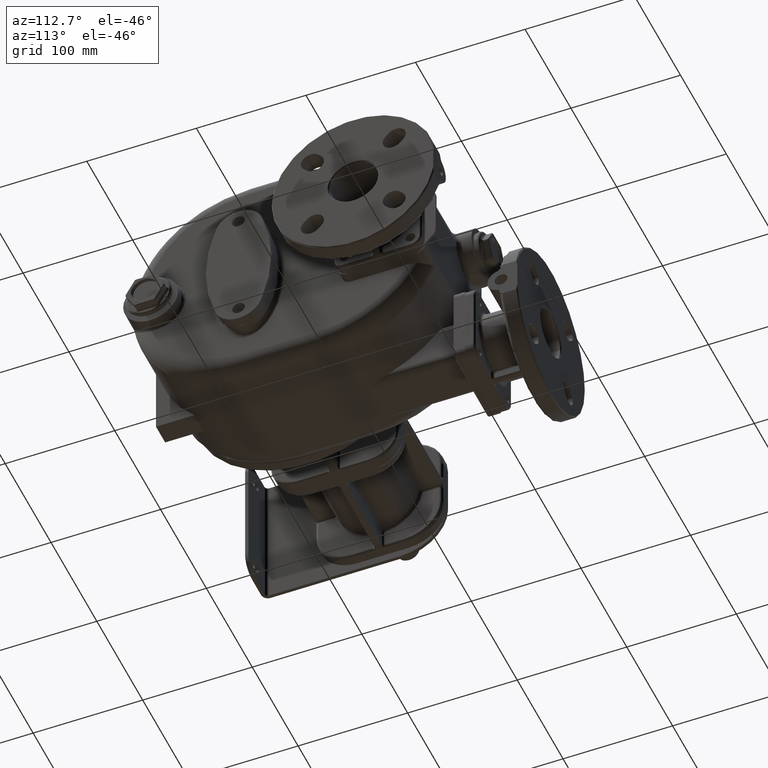
[diagram: clean part render]
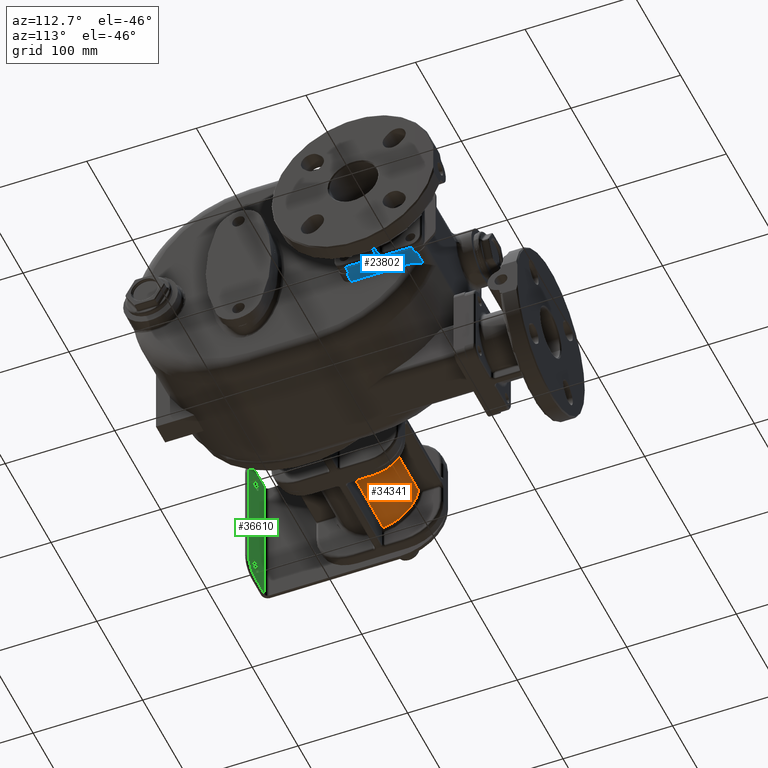
[diagram: same view with three faces highlighted in distinct colors, each labeled with its STEP entity id]
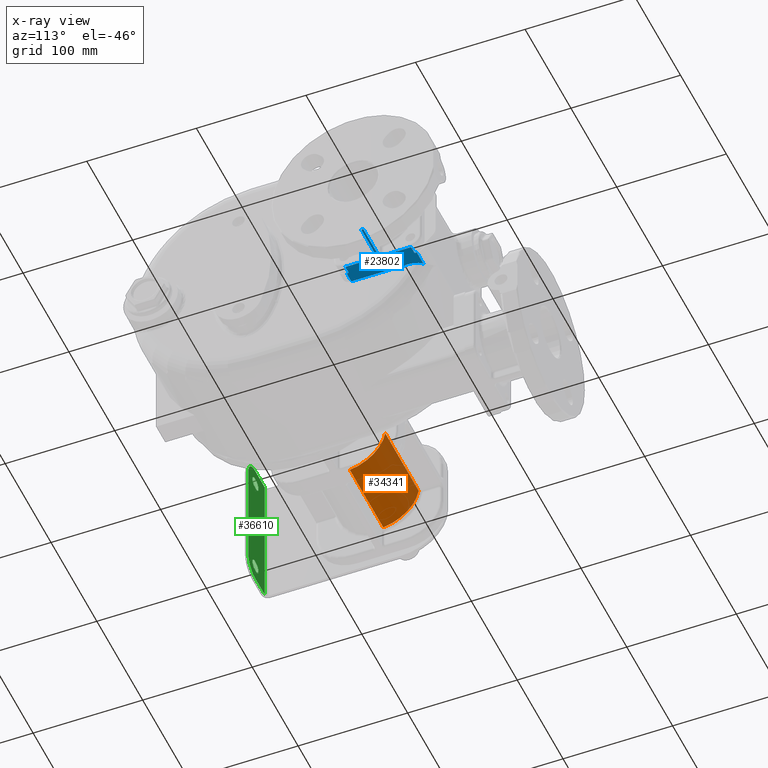
[diagram: x-ray of the same camera — body ghosted, the three highlighted faces saturated]
A machine part, auxiliary view with three faces highlighted in distinct colors.
The next image is the same camera in x-ray (body ghosted, the three faces saturated) — at least one of them is partly hidden behind the body in this view.
Their STEP definitions:

[orange] entity #34341 — the highlighted cylindrical surface (partial cylindrical patch) has radius 38 mm, axis along (-1, 0, 0).
#11312=CARTESIAN_POINT('',(-1.375E2,1.152250000008E2,-3.763906714377E1));
#11331=CARTESIAN_POINT('',(-1.375E2,1.1E2,0.E0));
#11332=DIRECTION('',(-1.E0,0.E0,0.E0));
#11333=DIRECTION('',(0.E0,9.873531035554E-1,-1.585365853659E-1));
#11334=AXIS2_PLACEMENT_3D('',#11331,#11332,#11333);
#11351=DIRECTION('',(1.E0,-7.658288006795E-13,5.517802348973E-12));
#11352=VECTOR('',#11351,7.3E1);
#11353=CARTESIAN_POINT('',(-2.105E2,1.152250000009E2,-3.763906714417E1));
#11354=LINE('',#11353,#11352);
#11355=DIRECTION('',(-1.E0,0.E0,0.E0));
#11356=VECTOR('',#11355,7.3E1);
#11357=CARTESIAN_POINT('',(-1.375E2,1.475194179351E2,-6.024390243902E0));
#11358=LINE('',#11357,#11356);
#11378=CARTESIAN_POINT('',(-2.105E2,1.1E2,0.E0));
#11379=DIRECTION('',(1.E0,0.E0,0.E0));
#11380=DIRECTION('',(0.E0,1.375E-1,-9.905017667829E-1));
#11381=AXIS2_PLACEMENT_3D('',#11378,#11379,#11380);
#15077=CARTESIAN_POINT('',(-2.105E2,1.475194179351E2,-6.024390243902E0));
#15078=VERTEX_POINT('',#15077);
#15079=CARTESIAN_POINT('',(-1.375E2,1.475194179351E2,-6.024390243902E0));
#15080=VERTEX_POINT('',#15079);
#15191=VERTEX_POINT('',#11312);
#15192=CARTESIAN_POINT('',(-2.105E2,1.152250000009E2,-3.763906714417E1));
#15193=VERTEX_POINT('',#15192);
#34328=CARTESIAN_POINT('',(-1.1625E2,1.1E2,0.E0));
#34329=DIRECTION('',(-1.E0,0.E0,0.E0));
#34330=DIRECTION('',(0.E0,-1.E0,0.E0));
#34331=AXIS2_PLACEMENT_3D('',#34328,#34329,#34330);
#34332=CYLINDRICAL_SURFACE('',#34331,3.8E1);
#34334=ORIENTED_EDGE('',*,*,#34333,.T.);
#34335=ORIENTED_EDGE('',*,*,#34284,.F.);
#34336=ORIENTED_EDGE('',*,*,#34319,.T.);
#34338=ORIENTED_EDGE('',*,*,#34337,.F.);
#34339=EDGE_LOOP('',(#34334,#34335,#34336,#34338));
#34340=FACE_OUTER_BOUND('',#34339,.F.);
#34341=ADVANCED_FACE('',(#34340),#34332,.T.);
#11335=CIRCLE('',#11334,3.8E1);
#11382=CIRCLE('',#11381,3.8E1);
#34284=EDGE_CURVE('',#15080,#15191,#11335,.T.);
#34319=EDGE_CURVE('',#15080,#15078,#11358,.T.);
#34333=EDGE_CURVE('',#15193,#15191,#11354,.T.);
#34337=EDGE_CURVE('',#15193,#15078,#11382,.T.);

[blue] entity #23802 — the highlighted planar face has unit normal (0, 0, -1).
#2192=DIRECTION('',(1.E0,0.E0,0.E0));
#2193=VECTOR('',#2192,1.408347562149E1);
#2194=CARTESIAN_POINT('',(6.991652437851E1,2.69E2,-4.7E1));
#2195=LINE('',#2194,#2193);
#2293=CARTESIAN_POINT('',(7.4E1,2.573768228992E2,-4.7E1));
#2294=CARTESIAN_POINT('',(7.4E1,2.576020841172E2,-4.7E1));
#2295=CARTESIAN_POINT('',(7.399229348160E1,2.580511507349E2,-4.7E1));
#2296=CARTESIAN_POINT('',(7.395779192768E1,2.587211423584E2,-4.7E1));
#2297=CARTESIAN_POINT('',(7.390066815002E1,2.593852482694E2,-4.7E1));
#2298=CARTESIAN_POINT('',(7.382117493754E1,2.600433627516E2,-4.7E1));
#2299=CARTESIAN_POINT('',(7.371969160582E1,2.606940159417E2,-4.7E1));
#2300=CARTESIAN_POINT('',(7.359673452289E1,2.613358163383E2,-4.7E1));
#2301=CARTESIAN_POINT('',(7.345259981904E1,2.619686264832E2,-4.7E1));
#2302=CARTESIAN_POINT('',(7.328795824950E1,2.625907623841E2,-4.7E1));
#2303=CARTESIAN_POINT('',(7.310323769657E1,2.632018763834E2,-4.7E1));
#2304=CARTESIAN_POINT('',(7.289894857617E1,2.638012376095E2,-4.7E1));
#2305=CARTESIAN_POINT('',(7.267588768255E1,2.643875618754E2,-4.7E1));
#2306=CARTESIAN_POINT('',(7.243435346503E1,2.649609632373E2,-4.7E1));
#2307=CARTESIAN_POINT('',(7.217522917677E1,2.655201532063E2,-4.7E1));
#2308=CARTESIAN_POINT('',(7.189898353999E1,2.660649519596E2,-4.7E1));
#2309=CARTESIAN_POINT('',(7.160621854533E1,2.665948407258E2,-4.7E1));
#2310=CARTESIAN_POINT('',(7.129783018173E1,2.671089253753E2,-4.7E1));
#2311=CARTESIAN_POINT('',(7.097407269753E1,2.676074032988E2,-4.7E1));
#2312=CARTESIAN_POINT('',(7.063600853973E1,2.680892357156E2,-4.7E1));
#2313=CARTESIAN_POINT('',(7.028384310627E1,2.685546866574E2,-4.7E1));
#2314=CARTESIAN_POINT('',(7.004041331155E1,2.688534246486E2,-4.7E1));
#2315=CARTESIAN_POINT('',(6.991652437851E1,2.69E2,-4.7E1));
#5646=DIRECTION('',(1.E0,-2.590544075550E-11,0.E0));
#5647=VECTOR('',#5646,7.5E0);
#5648=CARTESIAN_POINT('',(8.4E1,2.67E2,-4.7E1));
#5649=LINE('',#5648,#5647);
#5659=DIRECTION('',(2.668087972821E-12,1.E0,0.E0));
#5660=VECTOR('',#5659,2.399999999962E1);
#5661=CARTESIAN_POINT('',(9.15E1,2.070000000001E2,-4.7E1));
#5662=LINE('',#5661,#5660);
#5663=CARTESIAN_POINT('',(9.65E1,2.31E2,-4.7E1));
#5664=DIRECTION('',(0.E0,0.E0,-1.E0));
#5665=DIRECTION('',(-1.E0,0.E0,0.E0));
#5666=AXIS2_PLACEMENT_3D('',#5663,#5664,#5665);
#5668=DIRECTION('',(1.E0,4.361785007276E-12,0.E0));
#5669=VECTOR('',#5668,2.999999999984E1);
#5670=CARTESIAN_POINT('',(9.650000000016E1,2.36E2,-4.7E1));
#5671=LINE('',#5670,#5669);
#5672=DIRECTION('',(0.E0,-1.E0,0.E0));
#5673=VECTOR('',#5672,1.999999999734E0);
#5674=CARTESIAN_POINT('',(1.265E2,2.379999999998E2,-4.7E1));
#5675=LINE('',#5674,#5673);
#5676=DIRECTION('',(-1.E0,7.216272024458E-12,0.E0));
#5677=VECTOR('',#5676,2.999999999968E1);
#5678=CARTESIAN_POINT('',(1.265E2,2.379999999998E2,-4.7E1));
#5679=LINE('',#5678,#5677);
#5680=CARTESIAN_POINT('',(9.65E1,2.43E2,-4.7E1));
#5681=DIRECTION('',(0.E0,0.E0,-1.E0));
#5682=DIRECTION('',(0.E0,-1.E0,0.E0));
#5683=AXIS2_PLACEMENT_3D('',#5680,#5681,#5682);
#5685=DIRECTION('',(-1.337004581142E-12,1.E0,0.E0));
#5686=VECTOR('',#5685,2.399999999964E1);
#5687=CARTESIAN_POINT('',(9.150000000003E1,2.430000000002E2,-4.7E1));
#5688=LINE('',#5687,#5686);
#5689=DIRECTION('',(0.E0,1.E0,0.E0));
#5690=VECTOR('',#5689,5.237682289921E1);
#5691=CARTESIAN_POINT('',(7.4E1,2.05E2,-4.7E1));
#5692=LINE('',#5691,#5690);
#5693=DIRECTION('',(-1.E0,0.E0,0.E0));
#5694=VECTOR('',#5693,1.E1);
#5695=CARTESIAN_POINT('',(8.4E1,2.05E2,-4.7E1));
#5696=LINE('',#5695,#5694);
#5706=DIRECTION('',(-1.E0,-7.071321306285E-12,0.E0));
#5707=VECTOR('',#5706,7.5E0);
#5708=CARTESIAN_POINT('',(9.15E1,2.070000000001E2,-4.7E1));
#5709=LINE('',#5708,#5707);
#7052=DIRECTION('',(0.E0,1.E0,0.E0));
#7053=VECTOR('',#7052,2.E0);
#7054=CARTESIAN_POINT('',(8.4E1,2.05E2,-4.7E1));
#7055=LINE('',#7054,#7053);
#7079=DIRECTION('',(0.E0,1.E0,0.E0));
#7080=VECTOR('',#7079,2.E0);
#7081=CARTESIAN_POINT('',(8.4E1,2.67E2,-4.7E1));
#7082=LINE('',#7081,#7080);
#13472=CARTESIAN_POINT('',(8.4E1,2.05E2,-4.7E1));
#13474=VERTEX_POINT('',#13472);
#13483=CARTESIAN_POINT('',(7.4E1,2.05E2,-4.7E1));
#13484=VERTEX_POINT('',#13483);
#13492=CARTESIAN_POINT('',(7.4E1,2.573768228992E2,-4.7E1));
#13494=VERTEX_POINT('',#13492);
#13512=VERTEX_POINT('',#2315);
#13515=CARTESIAN_POINT('',(8.4E1,2.69E2,-4.7E1));
#13516=VERTEX_POINT('',#13515);
#14648=CARTESIAN_POINT('',(8.4E1,2.07E2,-4.7E1));
#14650=VERTEX_POINT('',#14648);
#14665=CARTESIAN_POINT('',(8.4E1,2.67E2,-4.7E1));
#14666=VERTEX_POINT('',#14665);
#14813=CARTESIAN_POINT('',(9.15E1,2.070000000001E2,-4.7E1));
#14814=CARTESIAN_POINT('',(9.150000000006E1,2.309999999997E2,-4.7E1));
#14815=VERTEX_POINT('',#14813);
#14816=VERTEX_POINT('',#14814);
#14851=CARTESIAN_POINT('',(9.15E1,2.67E2,-4.7E1));
#14852=VERTEX_POINT('',#14851);
#14855=CARTESIAN_POINT('',(9.150000000003E1,2.430000000002E2,-4.7E1));
#14856=VERTEX_POINT('',#14855);
#14857=CARTESIAN_POINT('',(9.650000000016E1,2.36E2,-4.7E1));
#14858=CARTESIAN_POINT('',(1.265E2,2.360000000001E2,-4.7E1));
#14859=VERTEX_POINT('',#14857);
#14860=VERTEX_POINT('',#14858);
#14877=CARTESIAN_POINT('',(1.265E2,2.379999999998E2,-4.7E1));
#14878=CARTESIAN_POINT('',(9.650000000032E1,2.380000000001E2,-4.7E1));
#14879=VERTEX_POINT('',#14877);
#14880=VERTEX_POINT('',#14878);
#23769=CARTESIAN_POINT('',(8.4E1,1.97E2,-4.7E1));
#23770=DIRECTION('',(0.E0,0.E0,-1.E0));
#23771=DIRECTION('',(0.E0,1.E0,0.E0));
#23772=AXIS2_PLACEMENT_3D('',#23769,#23770,#23771);
#23773=PLANE('',#23772);
#23775=ORIENTED_EDGE('',*,*,#23774,.F.);
#23777=ORIENTED_EDGE('',*,*,#23776,.T.);
#23779=ORIENTED_EDGE('',*,*,#23778,.T.);
#23781=ORIENTED_EDGE('',*,*,#23780,.T.);
#23783=ORIENTED_EDGE('',*,*,#23782,.F.);
#23785=ORIENTED_EDGE('',*,*,#23784,.T.);
#23787=ORIENTED_EDGE('',*,*,#23786,.T.);
#23789=ORIENTED_EDGE('',*,*,#23788,.T.);
#23790=ORIENTED_EDGE('',*,*,#23756,.F.);
#23792=ORIENTED_EDGE('',*,*,#23791,.T.);
#23793=ORIENTED_EDGE('',*,*,#18790,.F.);
#23794=ORIENTED_EDGE('',*,*,#18858,.F.);
#23795=ORIENTED_EDGE('',*,*,#18900,.F.);
#23797=ORIENTED_EDGE('',*,*,#23796,.F.);
#23799=ORIENTED_EDGE('',*,*,#23798,.T.);
#23800=EDGE_LOOP('',(#23775,#23777,#23779,#23781,#23783,#23785,#23787,#23789,
#23790,#23792,#23793,#23794,#23795,#23797,#23799));
#23801=FACE_OUTER_BOUND('',#23800,.F.);
#23802=ADVANCED_FACE('',(#23801),#23773,.T.);
#2316=B_SPLINE_CURVE_WITH_KNOTS('',3,(#2293,#2294,#2295,#2296,#2297,#2298,#2299,
#2300,#2301,#2302,#2303,#2304,#2305,#2306,#2307,#2308,#2309,#2310,#2311,#2312,
#2313,#2314,#2315),.UNSPECIFIED.,.F.,.F.,(4,1,1,1,1,1,1,1,1,1,1,1,1,1,1,1,1,1,1,
1,4),(0.E0,5.E-2,1.E-1,1.5E-1,2.E-1,2.5E-1,3.E-1,3.5E-1,4.E-1,4.5E-1,5.E-1,
5.5E-1,6.E-1,6.5E-1,7.E-1,7.5E-1,8.E-1,8.5E-1,9.E-1,9.5E-1,1.E0),.UNSPECIFIED.);
#5667=CIRCLE('',#5666,5.E0);
#5684=CIRCLE('',#5683,5.E0);
#18790=EDGE_CURVE('',#13512,#13516,#2195,.T.);
#18858=EDGE_CURVE('',#13494,#13512,#2316,.T.);
#18900=EDGE_CURVE('',#13484,#13494,#5692,.T.);
#23756=EDGE_CURVE('',#14666,#14852,#5649,.T.);
#23774=EDGE_CURVE('',#14815,#14650,#5709,.T.);
#23776=EDGE_CURVE('',#14815,#14816,#5662,.T.);
#23778=EDGE_CURVE('',#14816,#14859,#5667,.T.);
#23780=EDGE_CURVE('',#14859,#14860,#5671,.T.);
#23782=EDGE_CURVE('',#14879,#14860,#5675,.T.);
#23784=EDGE_CURVE('',#14879,#14880,#5679,.T.);
#23786=EDGE_CURVE('',#14880,#14856,#5684,.T.);
#23788=EDGE_CURVE('',#14856,#14852,#5688,.T.);
#23791=EDGE_CURVE('',#14666,#13516,#7082,.T.);
#23796=EDGE_CURVE('',#13474,#13484,#5696,.T.);
#23798=EDGE_CURVE('',#13474,#14650,#7055,.T.);

[green] entity #36610 — the highlighted planar face has unit normal (0, 1, 0).
#12176=CARTESIAN_POINT('',(-1.995E2,3.E0,5.E1));
#12177=DIRECTION('',(0.E0,1.E0,0.E0));
#12178=DIRECTION('',(0.E0,0.E0,1.E0));
#12179=AXIS2_PLACEMENT_3D('',#12176,#12177,#12178);
#12181=DIRECTION('',(1.E0,0.E0,0.E0));
#12182=VECTOR('',#12181,2.E1);
#12183=CARTESIAN_POINT('',(-2.195E2,3.E0,6.5E1));
#12184=LINE('',#12183,#12182);
#12185=DIRECTION('',(-1.E0,0.E0,0.E0));
#12186=VECTOR('',#12185,2.E1);
#12187=CARTESIAN_POINT('',(-1.995E2,3.E0,-6.5E1));
#12188=LINE('',#12187,#12186);
#12189=CARTESIAN_POINT('',(-1.995E2,3.E0,-5.E1));
#12190=DIRECTION('',(0.E0,1.E0,0.E0));
#12191=DIRECTION('',(1.E0,0.E0,0.E0));
#12192=AXIS2_PLACEMENT_3D('',#12189,#12190,#12191);
#12194=DIRECTION('',(0.E0,0.E0,-1.E0));
#12195=VECTOR('',#12194,1.E2);
#12196=CARTESIAN_POINT('',(-1.845E2,3.E0,5.E1));
#12197=LINE('',#12196,#12195);
#12198=DIRECTION('',(1.E0,0.E0,0.E0));
#12199=VECTOR('',#12198,3.E0);
#12200=CARTESIAN_POINT('',(-2.015E2,3.E0,-5.5E1));
#12201=LINE('',#12200,#12199);
#12202=CARTESIAN_POINT('',(-2.015E2,3.E0,-5.E1));
#12203=DIRECTION('',(0.E0,1.E0,0.E0));
#12204=DIRECTION('',(0.E0,0.E0,-1.E0));
#12205=AXIS2_PLACEMENT_3D('',#12202,#12203,#12204);
#12207=DIRECTION('',(-1.E0,0.E0,0.E0));
#12208=VECTOR('',#12207,3.E0);
#12209=CARTESIAN_POINT('',(-1.985E2,3.E0,-4.5E1));
#12210=LINE('',#12209,#12208);
#12211=CARTESIAN_POINT('',(-1.985E2,3.E0,-5.E1));
#12212=DIRECTION('',(0.E0,1.E0,0.E0));
#12213=DIRECTION('',(0.E0,0.E0,1.E0));
#12214=AXIS2_PLACEMENT_3D('',#12211,#12212,#12213);
#12216=CARTESIAN_POINT('',(-2.015E2,3.E0,5.E1));
#12217=DIRECTION('',(0.E0,1.E0,0.E0));
#12218=DIRECTION('',(0.E0,0.E0,-1.E0));
#12219=AXIS2_PLACEMENT_3D('',#12216,#12217,#12218);
#12221=DIRECTION('',(-1.E0,0.E0,0.E0));
#12222=VECTOR('',#12221,3.E0);
#12223=CARTESIAN_POINT('',(-1.985E2,3.E0,5.5E1));
#12224=LINE('',#12223,#12222);
#12225=CARTESIAN_POINT('',(-1.985E2,3.E0,5.E1));
#12226=DIRECTION('',(0.E0,1.E0,0.E0));
#12227=DIRECTION('',(0.E0,0.E0,1.E0));
#12228=AXIS2_PLACEMENT_3D('',#12225,#12226,#12227);
#12230=DIRECTION('',(1.E0,0.E0,0.E0));
#12231=VECTOR('',#12230,3.E0);
#12232=CARTESIAN_POINT('',(-2.015E2,3.E0,4.5E1));
#12233=LINE('',#12232,#12231);
#12234=DIRECTION('',(0.E0,0.E0,1.E0));
#12235=VECTOR('',#12234,1.3E2);
#12236=CARTESIAN_POINT('',(-2.195E2,3.E0,-6.5E1));
#12237=LINE('',#12236,#12235);
#15454=CARTESIAN_POINT('',(-2.195E2,3.E0,-6.5E1));
#15455=CARTESIAN_POINT('',(-2.195E2,3.E0,6.5E1));
#15456=VERTEX_POINT('',#15454);
#15457=VERTEX_POINT('',#15455);
#15464=CARTESIAN_POINT('',(-2.015E2,3.E0,-5.5E1));
#15465=CARTESIAN_POINT('',(-1.985E2,3.E0,-5.5E1));
#15466=VERTEX_POINT('',#15464);
#15467=VERTEX_POINT('',#15465);
#15468=CARTESIAN_POINT('',(-1.985E2,3.E0,-4.5E1));
#15469=VERTEX_POINT('',#15468);
#15470=CARTESIAN_POINT('',(-2.015E2,3.E0,-4.5E1));
#15471=VERTEX_POINT('',#15470);
#15484=CARTESIAN_POINT('',(-1.995E2,3.E0,6.5E1));
#15485=VERTEX_POINT('',#15484);
#15486=CARTESIAN_POINT('',(-1.845E2,3.E0,5.E1));
#15487=VERTEX_POINT('',#15486);
#15492=CARTESIAN_POINT('',(-1.845E2,3.E0,-5.E1));
#15493=VERTEX_POINT('',#15492);
#15494=CARTESIAN_POINT('',(-1.995E2,3.E0,-6.5E1));
#15495=VERTEX_POINT('',#15494);
#15500=CARTESIAN_POINT('',(-2.015E2,3.E0,4.5E1));
#15501=CARTESIAN_POINT('',(-2.015E2,3.E0,5.5E1));
#15502=VERTEX_POINT('',#15500);
#15503=VERTEX_POINT('',#15501);
#15504=CARTESIAN_POINT('',(-1.985E2,3.E0,4.5E1));
#15505=VERTEX_POINT('',#15504);
#15506=CARTESIAN_POINT('',(-1.985E2,3.E0,5.5E1));
#15507=VERTEX_POINT('',#15506);
#36573=CARTESIAN_POINT('',(-2.255E2,3.E0,6.5E1));
#36574=DIRECTION('',(0.E0,1.E0,0.E0));
#36575=DIRECTION('',(0.E0,0.E0,1.E0));
#36576=AXIS2_PLACEMENT_3D('',#36573,#36574,#36575);
#36577=PLANE('',#36576);
#36578=ORIENTED_EDGE('',*,*,#36553,.F.);
#36579=ORIENTED_EDGE('',*,*,#36568,.F.);
#36581=ORIENTED_EDGE('',*,*,#36580,.F.);
#36583=ORIENTED_EDGE('',*,*,#36582,.F.);
#36585=ORIENTED_EDGE('',*,*,#36584,.F.);
#36587=ORIENTED_EDGE('',*,*,#36586,.F.);
#36588=EDGE_LOOP('',(#36578,#36579,#36581,#36583,#36585,#36587));
#36589=FACE_OUTER_BOUND('',#36588,.F.);
#36591=ORIENTED_EDGE('',*,*,#36590,.F.);
#36593=ORIENTED_EDGE('',*,*,#36592,.T.);
#36595=ORIENTED_EDGE('',*,*,#36594,.F.);
#36597=ORIENTED_EDGE('',*,*,#36596,.T.);
#36598=EDGE_LOOP('',(#36591,#36593,#36595,#36597));
#36599=FACE_BOUND('',#36598,.F.);
#36601=ORIENTED_EDGE('',*,*,#36600,.T.);
#36603=ORIENTED_EDGE('',*,*,#36602,.F.);
#36605=ORIENTED_EDGE('',*,*,#36604,.T.);
#36607=ORIENTED_EDGE('',*,*,#36606,.F.);
#36608=EDGE_LOOP('',(#36601,#36603,#36605,#36607));
#36609=FACE_BOUND('',#36608,.F.);
#36610=ADVANCED_FACE('',(#36589,#36599,#36609),#36577,.T.);
#12180=CIRCLE('',#12179,1.5E1);
#12193=CIRCLE('',#12192,1.5E1);
#12206=CIRCLE('',#12205,5.E0);
#12215=CIRCLE('',#12214,5.E0);
#12220=CIRCLE('',#12219,5.E0);
#12229=CIRCLE('',#12228,5.E0);
#36553=EDGE_CURVE('',#15485,#15487,#12180,.T.);
#36568=EDGE_CURVE('',#15457,#15485,#12184,.T.);
#36580=EDGE_CURVE('',#15456,#15457,#12237,.T.);
#36582=EDGE_CURVE('',#15495,#15456,#12188,.T.);
#36584=EDGE_CURVE('',#15493,#15495,#12193,.T.);
#36586=EDGE_CURVE('',#15487,#15493,#12197,.T.);
#36590=EDGE_CURVE('',#15466,#15467,#12201,.T.);
#36592=EDGE_CURVE('',#15466,#15471,#12206,.T.);
#36594=EDGE_CURVE('',#15469,#15471,#12210,.T.);
#36596=EDGE_CURVE('',#15469,#15467,#12215,.T.);
#36600=EDGE_CURVE('',#15502,#15503,#12220,.T.);
#36602=EDGE_CURVE('',#15507,#15503,#12224,.T.);
#36604=EDGE_CURVE('',#15507,#15505,#12229,.T.);
#36606=EDGE_CURVE('',#15502,#15505,#12233,.T.);